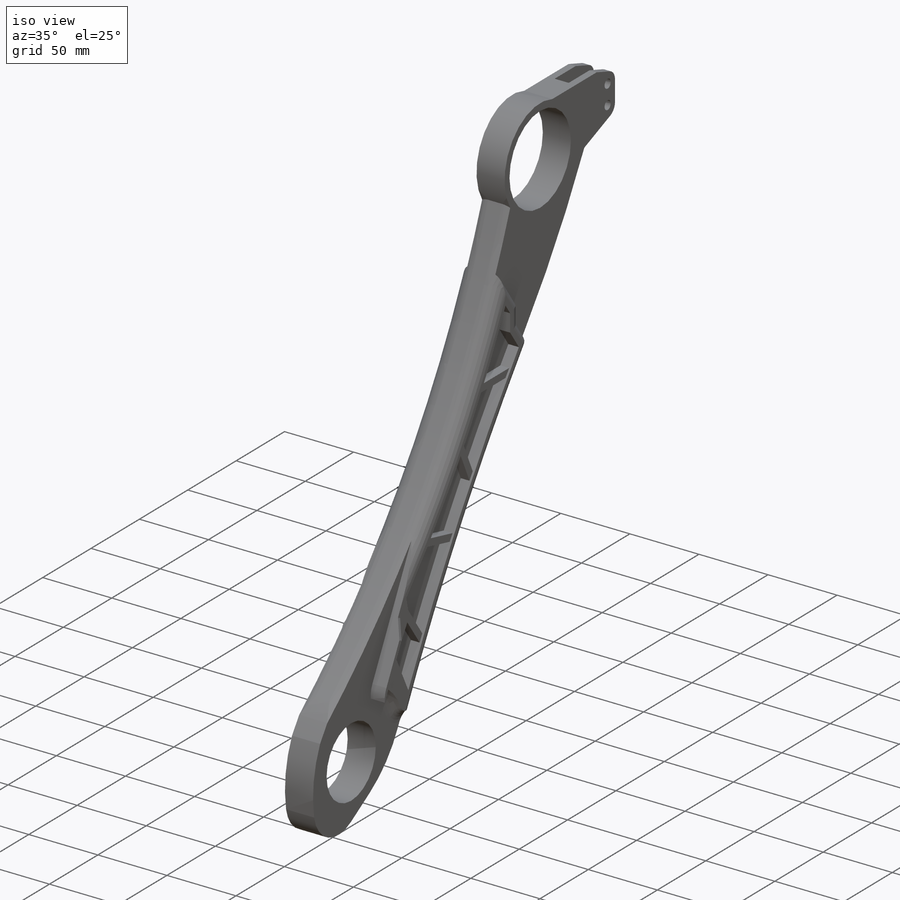
[diagram: iso view]
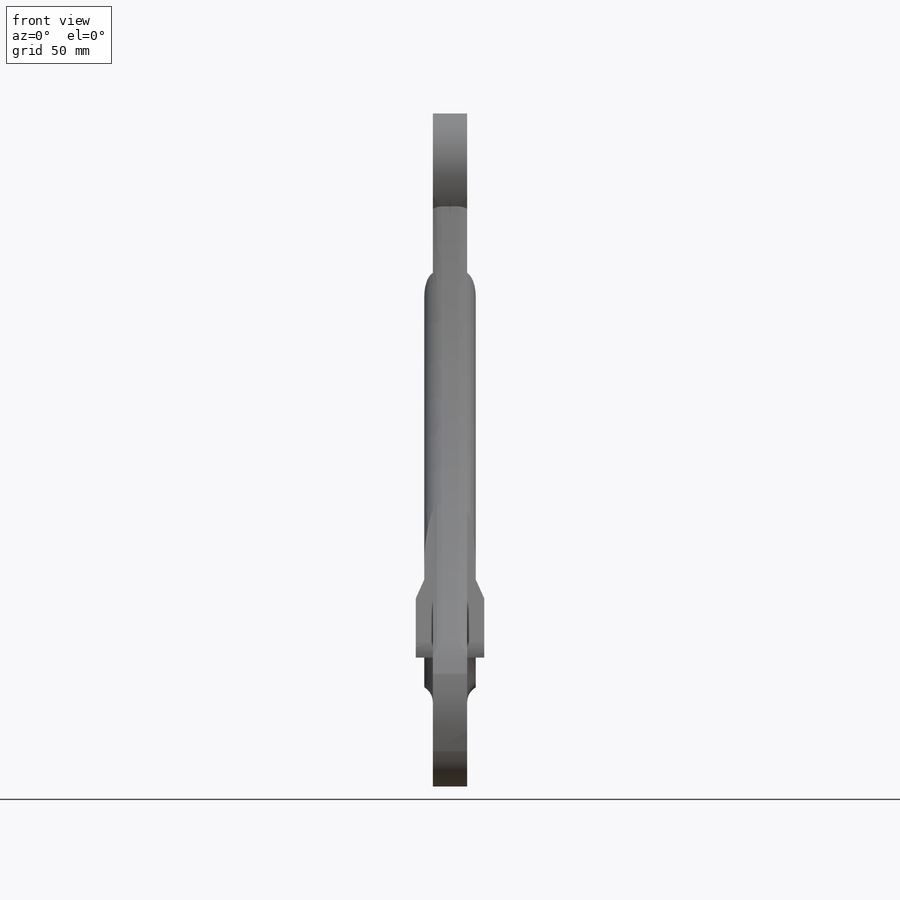
[diagram: front view]
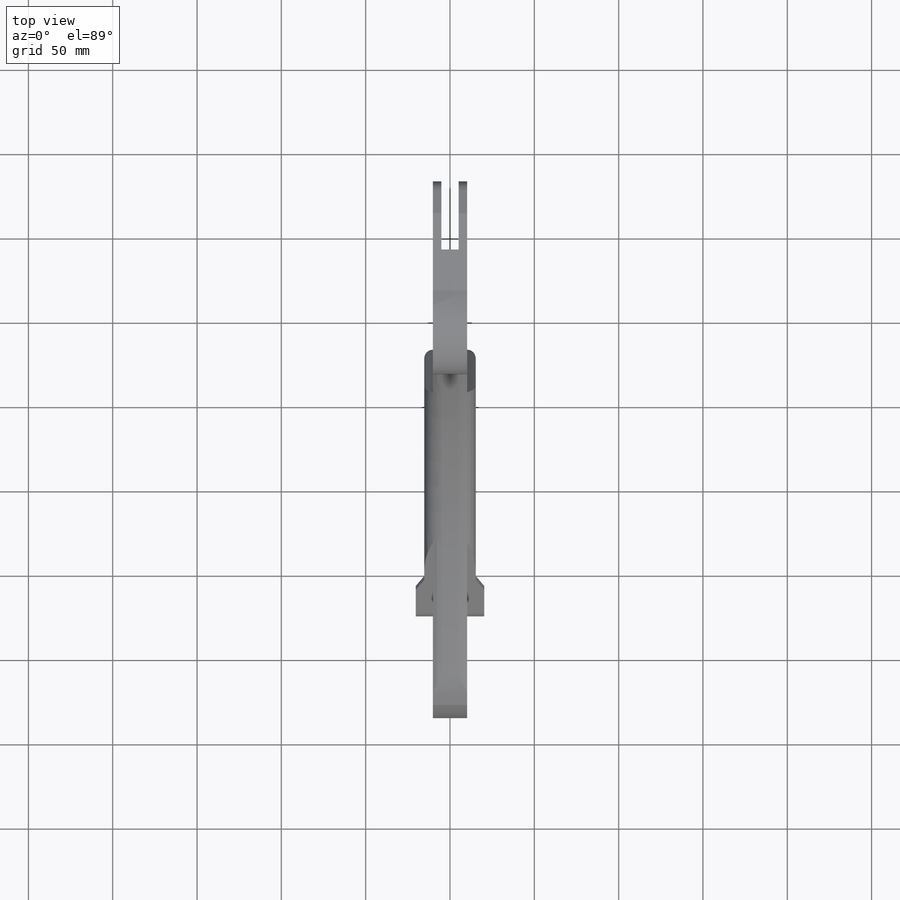
[diagram: top view]
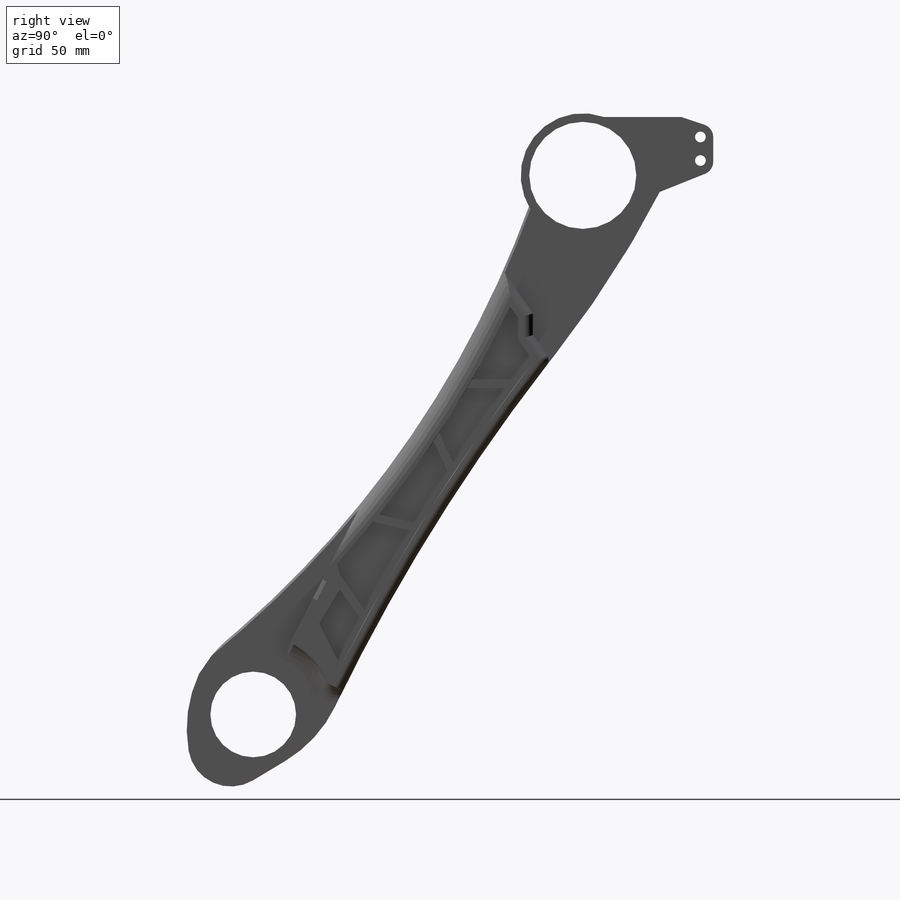
[diagram: right view]
SOLIDWORKS PART (.sldprt)
format: sldprt  version: not decoded by parser v0  size: 734,720 bytes
history: native  units: mm
features: sketch x10, fillet x10, cut_extrude x7, mirror x5, extrude x3, material x1 (+13 scaffold rows collapsed)
feature tree (49):
  scaffold x13  (default folders/planes/origin — collapsed)
  material  "Material <not specified>"
  sketch  "Sketch1"  dims[c1.D1=63.5mm c1.D2=63.5mm c1.D18=1143.0mm c2.D2=5.08mm c2.D3=~27.91754mm c3.D3=140.0deg c3.D4=31.75mm c4.D4=160.0deg c4.D5=558.8mm c4.D6=360.68mm c4.D7=45.72mm c4.D8=25.4mm c4.D9=6.35mm c4.D10=19.05mm c4.D11=12.7mm c4.D12=31.75mm c4.D13=43.18mm c4.D14=25.4mm c4.D15=63.5mm c4.D16=38.1mm c4.D17=228.6mm c4.D19=139.7mm c4.D20=63.5mm c4.D21=33.02mm c5.D5=431.8mm]
  extrude  "Boss-Extrude1"  Depth=30.48mm
  sketch  "Sketch2"  dims[D5=101.6mm D1=38.1mm D2=25.4mm D3=17.78mm D4=12.7mm]
  cut_extrude  "Cut-Extrude1"  Depth=5.08mm
  mirror  "Mirror1"
  fillet  "Fillet1"  Radius=5.08mm
  sketch  "Sketch3"  dims[D1=10.16mm D2=40.64mm]
  cut_extrude  "Cut-Extrude2"  Depth=45.72mm
  fillet  "Fillet2"  Radius=50.8mm
  fillet  "Fillet3"  Radius=7.62mm
  sketch  "Sketch4"  dims[D2=6.35mm D1=13.97mm]
  cut_extrude  "Cut-Extrude3"  Depth=45.72mm
  fillet  "Fillet4"  Radius=76.2mm
  sketch  "Sketch5"  dims[D1=50.8mm D2=44.45mm D3=15.24mm]
  cut_extrude  "Cut-Extrude4"  [1 undecoded]
  fillet  "Fillet5"  Radius=25.4mm
  sketch  "Sketch6"
  cut_extrude  "Cut-Extrude5"  Depth=5.08mm
  mirror  "Mirror2"
  fillet  "Fillet7"  Radius=6.35mm
  fillet  "Fillet8"  Radius=10.16mm
  sketch  "Sketch9"  dims[D1=127.0mm D2=152.4mm]
  cut_extrude  "Cut-Extrude7"  Depth=5.08mm
  mirror  "Mirror5"
  sketch  "Sketch10"  dims[D1=10.16mm D2=38.1mm D3=63.5mm]
  extrude  "Boss-Extrude3"  Depth=2.54mm
  mirror  "Mirror6"
  fillet  "Fillet9"  Radius=10.16mm
  fillet  "Fillet10"  Radius=5.08mm
  sketch  "Sketch11"  dims[c1.D1=~623.139207mm c1.D5=~1151.539051mm c2.D1=2.54mm c2.D2=3.81mm c2.D3=3.81mm c2.D4=3.81mm c2.D5=2.54mm c2.D6=152.4mm c2.D7=12.7mm c2.D8=3.175mm c2.D9=114.3mm c2.D10=25.4mm c2.D11=12.7mm]
  cut_extrude  "Cut-Extrude8"  Depth=7.62mm
  mirror  "Mirror7"
  sketch  "Sketch12"  dims[D1=5.08mm D2=8.89mm D3=5.08mm D4=5.08mm D5=5.08mm D6=50.8mm D7=31.75mm D8=25.4mm D9=45.72mm D10=50.8mm]
  extrude  "Boss-Extrude5"  Depth=27.94mm
  fillet  "Fillet11"  Radius=16.51mm
decode coverage: 28 of 35 modeling features carry decoded parameters
note: ~ marks probable driven/reference dimensions
note: 1 parameter value undecoded
note: suppression state not decoded; provenance and decode notes live in map.json
